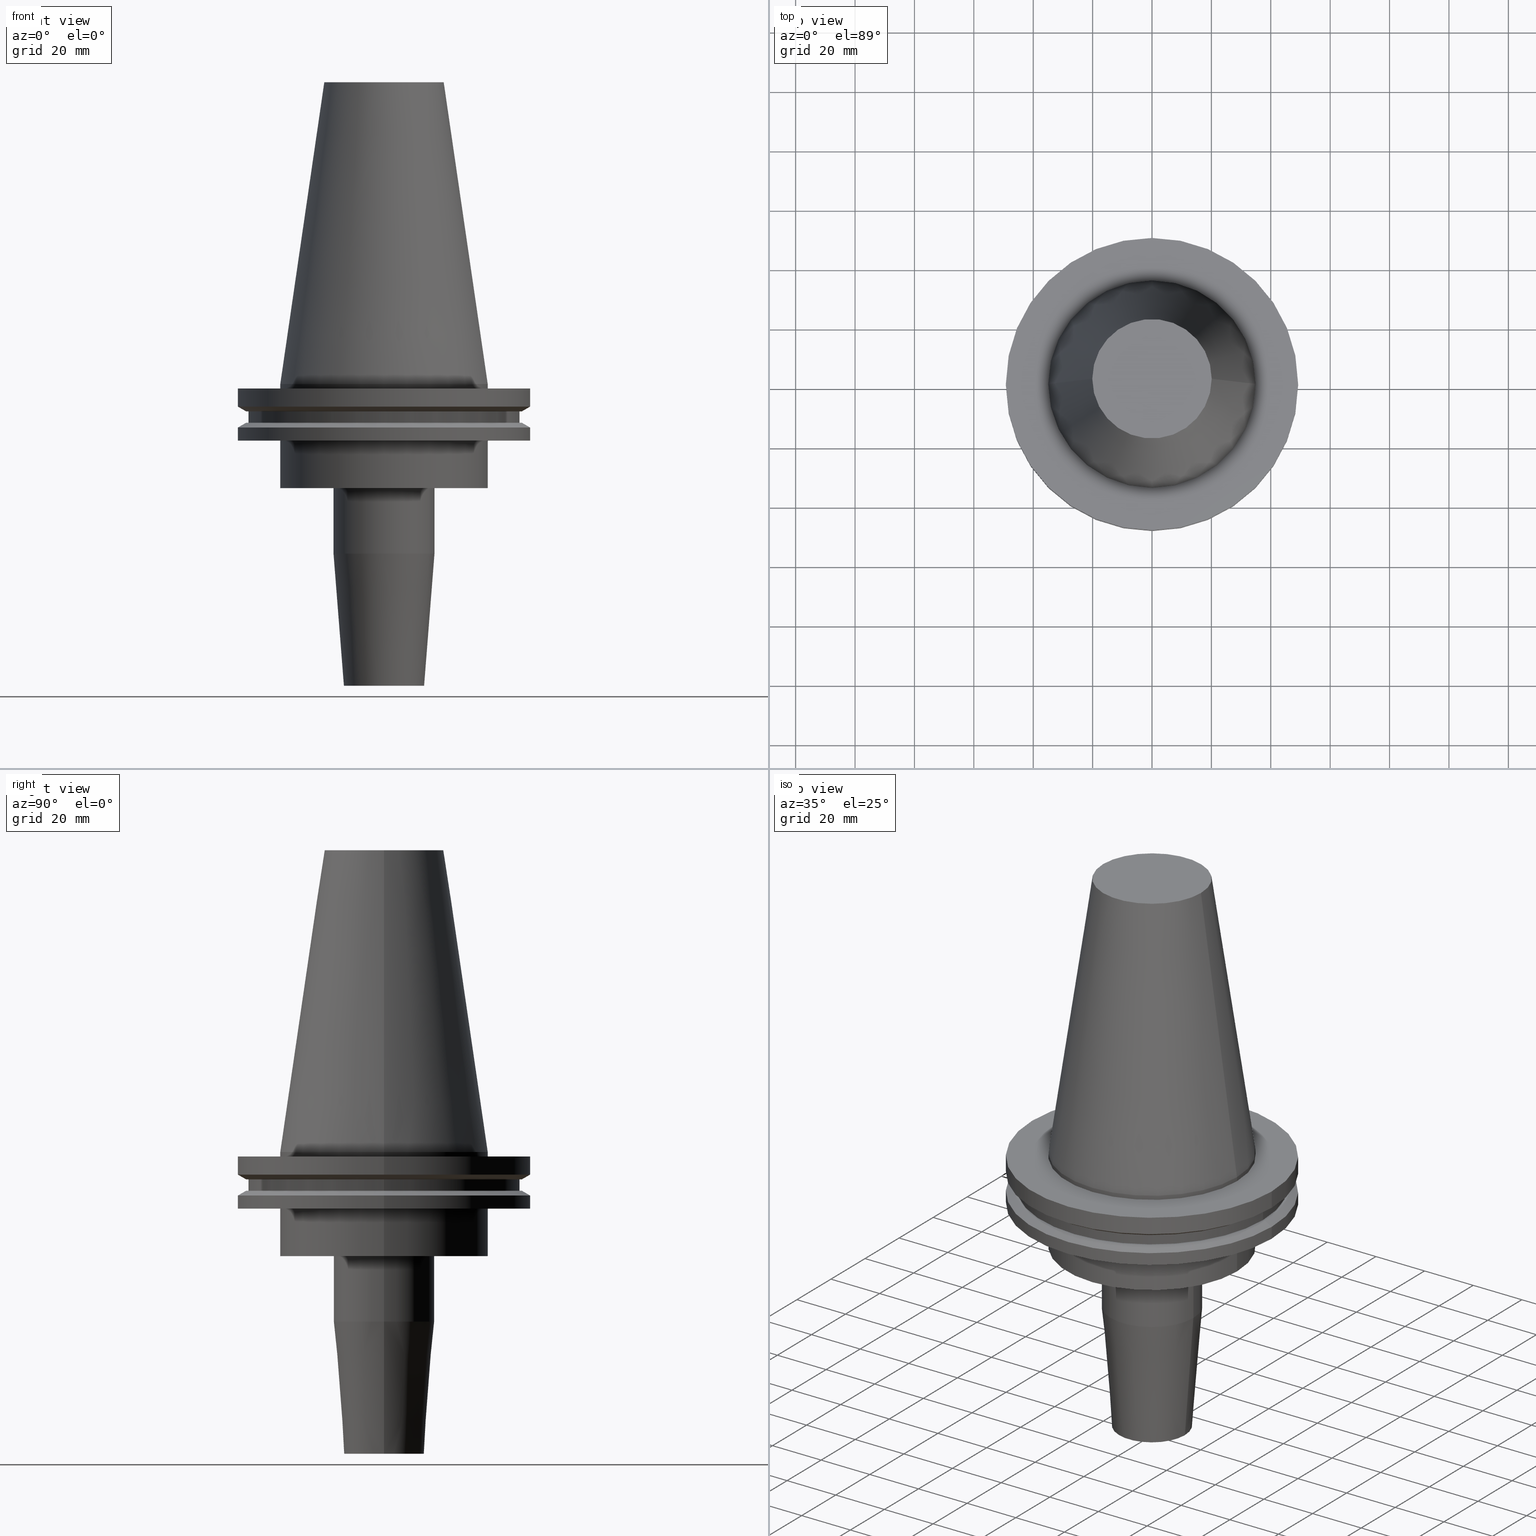
[diagram: canonical four-view strip — front | top / right | iso, engineering-drawing reading convention]
A machine part, canonical four-view strip (front | top / right | iso — engineering-drawing reading convention). The complete STEP part file that produces these views, byte-faithful:
ISO-10303-21;
HEADER;
FILE_DESCRIPTION (( 'STEP AP203' ),
    '1' );
FILE_NAME ('BCV50-SF_625-4.stp',
    '2022-03-03T17:21:38',
    ( '' ),
    ( '' ),
    'SwSTEP 2.0',
    'SolidWorks 2021',
    '' );
FILE_SCHEMA (( 'CONFIG_CONTROL_DESIGN' ));
ENDSEC;

DATA;
#1 = CALENDAR_DATE ( 2022, 3, 3 ) ;
#2 = DIRECTION ( 'NONE',  ( 1.000000000000000000, 0.000000000000000000, 0.000000000000000000 ) ) ;
#3 = ORIENTED_EDGE ( 'NONE', *, *, #284, .T. ) ;
#4 = CC_DESIGN_APPROVAL ( #801, ( #241 ) ) ;
#5 = VERTEX_POINT ( 'NONE', #460 ) ;
#6 = CIRCLE ( 'NONE', #29, 7.937500000000000000 ) ;
#7 = ADVANCED_FACE ( 'NONE', ( #798 ), #177, .T. ) ;
#8 = DIRECTION ( 'NONE',  ( 0.000000000000000000, 0.000000000000000000, -1.000000000000000000 ) ) ;
#9 = LINE ( 'NONE', #273, #349 ) ;
#10 = CONICAL_SURFACE ( 'NONE', #440, 13.50000000000000000, 0.07853981633973740328 ) ;
#11 = CIRCLE ( 'NONE', #709, 45.64500000000000313 ) ;
#12 = FACE_OUTER_BOUND ( 'NONE', #736, .T. ) ;
#13 = EDGE_LOOP ( 'NONE', ( #86, #262 ) ) ;
#14 = PERSON_AND_ORGANIZATION ( #649, #758 ) ;
#15 = DIRECTION ( 'NONE',  ( 1.000000000000000000, 0.000000000000000000, 0.000000000000000000 ) ) ;
#16 = FACE_OUTER_BOUND ( 'NONE', #140, .T. ) ;
#17 = EDGE_LOOP ( 'NONE', ( #172, #3 ) ) ;
#18 = DIRECTION ( 'NONE',  ( -0.07845909572783753283, 9.608468044709199834E-18, 0.9969173337331286300 ) ) ;
#19 = CARTESIAN_POINT ( 'NONE',  ( 0.000000000000000000, 0.000000000000000000, -7.602389855251287187 ) ) ;
#20 = APPROVAL_DATE_TIME ( #677, #129 ) ;
#21 = CIRCLE ( 'NONE', #192, 17.00000000000000000 ) ;
#22 = DIRECTION ( 'NONE',  ( -0.000000000000000000, -0.000000000000000000, 1.000000000000000000 ) ) ;
#23 = DIRECTION ( 'NONE',  ( 1.000000000000000000, 0.000000000000000000, 0.000000000000000000 ) ) ;
#24 = EDGE_LOOP ( 'NONE', ( #681, #835, #631, #135 ) ) ;
#25 = ORIENTED_EDGE ( 'NONE', *, *, #629, .T. ) ;
#26 = LINE ( 'NONE', #613, #559 ) ;
#27 = DIRECTION ( 'NONE',  ( 1.000000000000000000, 0.000000000000000000, 0.000000000000000000 ) ) ;
#28 = EDGE_CURVE ( 'NONE', #498, #309, #577, .T. ) ;
#29 = AXIS2_PLACEMENT_3D ( 'NONE', #477, #735, #144 ) ;
#30 = CARTESIAN_POINT ( 'NONE',  ( -13.50000000000000000, 1.867586368699713770E-15, -101.5999999999999943 ) ) ;
#31 = CC_DESIGN_DATE_AND_TIME_ASSIGNMENT ( #271, #796, ( #557 ) ) ;
#32 = CARTESIAN_POINT ( 'NONE',  ( 0.000000000000000000, 0.000000000000000000, 101.5999999999999943 ) ) ;
#33 = ORIENTED_EDGE ( 'NONE', *, *, #663, .F. ) ;
#34 = DIRECTION ( 'NONE',  ( -0.000000000000000000, -0.000000000000000000, 1.000000000000000000 ) ) ;
#35 = CYLINDRICAL_SURFACE ( 'NONE', #499, 49.21499999999998920 ) ;
#36 = CIRCLE ( 'NONE', #708, 13.50000000000000000 ) ;
#37 = EDGE_LOOP ( 'NONE', ( #574, #344, #570, #33 ) ) ;
#38 = DIRECTION ( 'NONE',  ( 0.000000000000000000, -0.000000000000000000, 1.000000000000000000 ) ) ;
#39 = DIRECTION ( 'NONE',  ( -0.000000000000000000, -0.000000000000000000, 1.000000000000000000 ) ) ;
#40 = ADVANCED_FACE ( 'NONE', ( #413 ), #805, .F. ) ;
#41 = ORIENTED_EDGE ( 'NONE', *, *, #732, .F. ) ;
#42 = EDGE_LOOP ( 'NONE', ( #599, #317, #405, #251 ) ) ;
#43 = APPROVAL_PERSON_ORGANIZATION ( #14, #801, #664 ) ;
#44 = CARTESIAN_POINT ( 'NONE',  ( 49.21499999999999631, 0.000000000000000000, -1.499999999999987566 ) ) ;
#45 = VECTOR ( 'NONE', #315, 1000.000000000000000 ) ;
#46 = DIRECTION ( 'NONE',  ( 1.000000000000000000, 0.000000000000000000, 0.000000000000000000 ) ) ;
#47 = ORIENTED_EDGE ( 'NONE', *, *, #119, .T. ) ;
#48 = DIRECTION ( 'NONE',  ( 1.000000000000000000, 0.000000000000000000, 0.000000000000000000 ) ) ;
#49 = PRODUCT_DEFINITION_SHAPE ( 'NONE', 'NONE',  #557 ) ;
#50 = LINE ( 'NONE', #190, #536 ) ;
#51 = EDGE_LOOP ( 'NONE', ( #651, #274, #68, #265 ) ) ;
#52 = AXIS2_PLACEMENT_3D ( 'NONE', #249, #387, #765 ) ;
#53 = DIRECTION ( 'NONE',  ( -0.000000000000000000, -0.000000000000000000, 1.000000000000000000 ) ) ;
#54 = FACE_BOUND ( 'NONE', #304, .T. ) ;
#55 = VERTEX_POINT ( 'NONE', #266 ) ;
#56 = VERTEX_POINT ( 'NONE', #527 ) ;
#57 = EDGE_CURVE ( 'NONE', #699, #590, #137, .T. ) ;
#58 =( LENGTH_UNIT ( ) NAMED_UNIT ( * ) SI_UNIT ( .MILLI., .METRE. ) );
#59 = CC_DESIGN_APPROVAL ( #407, ( #557 ) ) ;
#60 = EDGE_CURVE ( 'NONE', #104, #239, #11, .T. ) ;
#61 = CARTESIAN_POINT ( 'NONE',  ( 0.000000000000000000, 0.000000000000000000, 0.000000000000000000 ) ) ;
#62 = CIRCLE ( 'NONE', #760, 13.50000000000000000 ) ;
#63 = AXIS2_PLACEMENT_3D ( 'NONE', #374, #632, #688 ) ;
#64 = ORIENTED_EDGE ( 'NONE', *, *, #414, .F. ) ;
#65 = DIRECTION ( 'NONE',  ( -1.000000000000000000, 0.000000000000000000, 0.000000000000000000 ) ) ;
#66 = DIRECTION ( 'NONE',  ( 0.8660254037844273833, 0.000000000000000000, 0.5000000000000195399 ) ) ;
#67 = EDGE_CURVE ( 'NONE', #322, #662, #769, .T. ) ;
#68 = ORIENTED_EDGE ( 'NONE', *, *, #485, .F. ) ;
#69 = CIRCLE ( 'NONE', #563, 34.92499999999999005 ) ;
#70 = PLANE ( 'NONE',  #791 ) ;
#71 = CARTESIAN_POINT ( 'NONE',  ( 0.000000000000000000, 0.000000000000000000, -35.04999999999999716 ) ) ;
#72 = ORIENTED_EDGE ( 'NONE', *, *, #552, .T. ) ;
#73 = EDGE_LOOP ( 'NONE', ( #593, #389 ) ) ;
#74 = ADVANCED_FACE ( 'NONE', ( #16 ), #402, .T. ) ;
#75 = CARTESIAN_POINT ( 'NONE',  ( 0.000000000000000000, 0.000000000000000000, -13.05499999999999794 ) ) ;
#76 = ORIENTED_EDGE ( 'NONE', *, *, #398, .F. ) ;
#77 = SECURITY_CLASSIFICATION ( '', '', #749 ) ;
#78 = ORIENTED_EDGE ( 'NONE', *, *, #60, .F. ) ;
#79 = DIRECTION ( 'NONE',  ( 0.000000000000000000, -0.000000000000000000, 1.000000000000000000 ) ) ;
#80 = DIRECTION ( 'NONE',  ( 1.000000000000000000, 0.000000000000000000, 0.000000000000000000 ) ) ;
#81 = ORIENTED_EDGE ( 'NONE', *, *, #223, .T. ) ;
#82 = ORIENTED_EDGE ( 'NONE', *, *, #657, .T. ) ;
#83 = VECTOR ( 'NONE', #133, 1000.000000000000000 ) ;
#84 = DIRECTION ( 'NONE',  ( 1.000000000000000000, 0.000000000000000000, 0.000000000000000000 ) ) ;
#85 = DIRECTION ( 'NONE',  ( -1.000000000000000000, 0.000000000000000000, 0.000000000000000000 ) ) ;
#86 = ORIENTED_EDGE ( 'NONE', *, *, #345, .F. ) ;
#87 = DATE_AND_TIME ( #216, #272 ) ;
#88 = ADVANCED_FACE ( 'NONE', ( #98 ), #204, .T. ) ;
#89 = DIRECTION ( 'NONE',  ( -0.000000000000000000, -0.000000000000000000, 1.000000000000000000 ) ) ;
#90 = FACE_OUTER_BOUND ( 'NONE', #852, .T. ) ;
#91 = CARTESIAN_POINT ( 'NONE',  ( 0.000000000000000000, 0.000000000000000000, 0.000000000000000000 ) ) ;
#92 = ADVANCED_BREP_SHAPE_REPRESENTATION ( 'BCV50-SF_625-4', ( #237, #184 ), #313 ) ;
#93 = CARTESIAN_POINT ( 'NONE',  ( 0.000000000000000000, 0.000000000000000000, -13.05499999999999794 ) ) ;
#94 = ADVANCED_FACE ( 'NONE', ( #623 ), #810, .T. ) ;
#95 = ORIENTED_EDGE ( 'NONE', *, *, #235, .T. ) ;
#96 = DIRECTION ( 'NONE',  ( -0.000000000000000000, -0.000000000000000000, 1.000000000000000000 ) ) ;
#97 = CLOSED_SHELL ( 'NONE', ( #763, #7, #546, #187, #168, #88, #123, #851, #94, #293, #363, #74, #108, #566, #575, #770, #240, #333, #276, #583, #430, #368, #756, #820, #636, #457, #370, #824, #757, #40 ) ) ;
#98 = FACE_OUTER_BOUND ( 'NONE', #730, .T. ) ;
#99 = EDGE_LOOP ( 'NONE', ( #112, #700, #811, #76 ) ) ;
#100 = CC_DESIGN_PERSON_AND_ORGANIZATION_ASSIGNMENT ( #458, #714, ( #557 ) ) ;
#101 = VERTEX_POINT ( 'NONE', #432 ) ;
#102 = CARTESIAN_POINT ( 'NONE',  ( -34.92499999999999005, 4.277078946022130098E-15, 101.5999999999999943 ) ) ;
#103 = CARTESIAN_POINT ( 'NONE',  ( 0.000000000000000000, 0.000000000000000000, -101.5999999999999943 ) ) ;
#104 = VERTEX_POINT ( 'NONE', #685 ) ;
#105 = CARTESIAN_POINT ( 'NONE',  ( 7.937500000000007105, 0.000000000000000000, -62.59999999999998721 ) ) ;
#106 = CARTESIAN_POINT ( 'NONE',  ( 0.000000000000000000, 0.000000000000000000, -14.65761014474876944 ) ) ;
#107 = ORIENTED_EDGE ( 'NONE', *, *, #340, .T. ) ;
#108 = ADVANCED_FACE ( 'NONE', ( #163 ), #151, .F. ) ;
#109 = LINE ( 'NONE', #431, #45 ) ;
#110 = DIRECTION ( 'NONE',  ( -0.000000000000000000, -0.000000000000000000, 1.000000000000000000 ) ) ;
#111 = VECTOR ( 'NONE', #584, 1000.000000000000000 ) ;
#112 = ORIENTED_EDGE ( 'NONE', *, *, #479, .F. ) ;
#113 = CARTESIAN_POINT ( 'NONE',  ( 0.000000000000000000, 0.000000000000000000, -19.04999999999999716 ) ) ;
#114 = CARTESIAN_POINT ( 'NONE',  ( 0.000000000000000000, 0.000000000000000000, -13.05499999999999794 ) ) ;
#115 = ORIENTED_EDGE ( 'NONE', *, *, #214, .F. ) ;
#116 = PLANE ( 'NONE',  #169 ) ;
#117 = DIRECTION ( 'NONE',  ( 1.000000000000000000, 0.000000000000000000, 0.000000000000000000 ) ) ;
#118 = ORIENTED_EDGE ( 'NONE', *, *, #57, .F. ) ;
#119 = EDGE_CURVE ( 'NONE', #794, #178, #617, .T. ) ;
#120 = CYLINDRICAL_SURFACE ( 'NONE', #544, 7.937500000000003553 ) ;
#121 = EDGE_LOOP ( 'NONE', ( #107, #366, #153, #438 ) ) ;
#122 = CIRCLE ( 'NONE', #603, 46.43919780457007818 ) ;
#123 = ADVANCED_FACE ( 'NONE', ( #554 ), #149, .T. ) ;
#124 = AXIS2_PLACEMENT_3D ( 'NONE', #365, #420, #287 ) ;
#125 = EDGE_CURVE ( 'NONE', #767, #55, #350, .T. ) ;
#126 = APPROVAL_DATE_TIME ( #452, #407 ) ;
#127 = CARTESIAN_POINT ( 'NONE',  ( 0.000000000000000000, 0.000000000000000000, -101.5999999999999943 ) ) ;
#128 = ORIENTED_EDGE ( 'NONE', *, *, #57, .T. ) ;
#129 = APPROVAL ( #359, 'UNSPECIFIED' ) ;
#130 = DIRECTION ( 'NONE',  ( -1.000000000000000000, 0.000000000000000000, 0.000000000000000000 ) ) ;
#131 = CIRCLE ( 'NONE', #242, 34.92499999999999005 ) ;
#132 = FACE_OUTER_BOUND ( 'NONE', #183, .T. ) ;
#133 = DIRECTION ( 'NONE',  ( -0.000000000000000000, -0.000000000000000000, 1.000000000000000000 ) ) ;
#134 = VERTEX_POINT ( 'NONE', #218 ) ;
#135 = ORIENTED_EDGE ( 'NONE', *, *, #235, .F. ) ;
#136 = AXIS2_PLACEMENT_3D ( 'NONE', #630, #311, #834 ) ;
#137 = CIRCLE ( 'NONE', #250, 49.21499999999999631 ) ;
#138 = CARTESIAN_POINT ( 'NONE',  ( 34.92499999999999716, 0.000000000000000000, -19.04999999999999716 ) ) ;
#139 = ORIENTED_EDGE ( 'NONE', *, *, #398, .T. ) ;
#140 = EDGE_LOOP ( 'NONE', ( #587, #847, #139, #263 ) ) ;
#141 = FACE_OUTER_BOUND ( 'NONE', #99, .T. ) ;
#142 = DIRECTION ( 'NONE',  ( 0.000000000000000000, -0.000000000000000000, 1.000000000000000000 ) ) ;
#143 = AXIS2_PLACEMENT_3D ( 'NONE', #764, #572, #444 ) ;
#144 = DIRECTION ( 'NONE',  ( 1.000000000000000000, 0.000000000000000000, 0.000000000000000000 ) ) ;
#145 = ORIENTED_EDGE ( 'NONE', *, *, #582, .T. ) ;
#146 = EDGE_CURVE ( 'NONE', #376, #326, #682, .T. ) ;
#147 = CIRCLE ( 'NONE', #294, 20.10819343178871321 ) ;
#148 = CARTESIAN_POINT ( 'NONE',  ( 0.000000000000000000, 0.000000000000000000, -101.5999999999999943 ) ) ;
#149 = CYLINDRICAL_SURFACE ( 'NONE', #753, 45.64500000000000313 ) ;
#150 = FACE_OUTER_BOUND ( 'NONE', #13, .T. ) ;
#151 = PLANE ( 'NONE',  #124 ) ;
#152 = LOCAL_TIME ( 11, 21, 38.00000000000000000, #155 ) ;
#153 = ORIENTED_EDGE ( 'NONE', *, *, #307, .F. ) ;
#154 = CIRCLE ( 'NONE', #672, 46.43919780457007818 ) ;
#155 = COORDINATED_UNIVERSAL_TIME_OFFSET ( 6, 0, .BEHIND. ) ;
#156 = DIRECTION ( 'NONE',  ( 1.000000000000000000, 0.000000000000000000, 0.000000000000000000 ) ) ;
#157 = EDGE_CURVE ( 'NONE', #5, #278, #426, .T. ) ;
#158 = DIRECTION ( 'NONE',  ( 1.000000000000000000, 0.000000000000000000, 0.000000000000000000 ) ) ;
#159 = PERSON_AND_ORGANIZATION_ROLE ( 'classification_officer' ) ;
#160 = CIRCLE ( 'NONE', #641, 34.92499999999999716 ) ;
#161 = CARTESIAN_POINT ( 'NONE',  ( 0.000000000000000000, 0.000000000000000000, -19.04999999999999716 ) ) ;
#162 = AXIS2_PLACEMENT_3D ( 'NONE', #291, #361, #751 ) ;
#163 = FACE_OUTER_BOUND ( 'NONE', #380, .T. ) ;
#164 = ORIENTED_EDGE ( 'NONE', *, *, #529, .F. ) ;
#165 = CYLINDRICAL_SURFACE ( 'NONE', #419, 34.92499999999999005 ) ;
#166 = CARTESIAN_POINT ( 'NONE',  ( 0.000000000000000000, 0.000000000000000000, -9.204999999999991189 ) ) ;
#167 = ORIENTED_EDGE ( 'NONE', *, *, #713, .F. ) ;
#168 = ADVANCED_FACE ( 'NONE', ( #90 ), #816, .T. ) ;
#169 = AXIS2_PLACEMENT_3D ( 'NONE', #628, #38, #771 ) ;
#170 = DIRECTION ( 'NONE',  ( -0.000000000000000000, -0.000000000000000000, 1.000000000000000000 ) ) ;
#171 = CARTESIAN_POINT ( 'NONE',  ( 0.000000000000000000, 0.000000000000000000, 101.5999999999999943 ) ) ;
#172 = ORIENTED_EDGE ( 'NONE', *, *, #146, .T. ) ;
#173 = CC_DESIGN_PERSON_AND_ORGANIZATION_ASSIGNMENT ( #462, #275, ( #723 ) ) ;
#174 = DIRECTION ( 'NONE',  ( 1.000000000000000000, 0.000000000000000000, 0.000000000000000000 ) ) ;
#175 = AXIS2_PLACEMENT_3D ( 'NONE', #646, #409, #711 ) ;
#176 = CARTESIAN_POINT ( 'NONE',  ( 49.21499999999998920, 0.000000000000000000, -19.04999999999999716 ) ) ;
#177 = CONICAL_SURFACE ( 'NONE', #388, 13.50000000000000000, 0.07853981633973740328 ) ;
#178 = VERTEX_POINT ( 'NONE', #354 ) ;
#179 = CARTESIAN_POINT ( 'NONE',  ( 0.000000000000000000, 0.000000000000000000, -7.602389855251287187 ) ) ;
#180 = APPLICATION_CONTEXT ( 'configuration controlled 3d designs of mechanical parts and assemblies' ) ;
#181 = CARTESIAN_POINT ( 'NONE',  ( 0.000000000000000000, 0.000000000000000000, -14.65761014474876944 ) ) ;
#182 = ORIENTED_EDGE ( 'NONE', *, *, #612, .F. ) ;
#183 = EDGE_LOOP ( 'NONE', ( #128, #357 ) ) ;
#184 = AXIS2_PLACEMENT_3D ( 'NONE', #194, #197, #724 ) ;
#185 = CARTESIAN_POINT ( 'NONE',  ( -46.43919780457007818, 5.857130358318727293E-15, -9.204999999999991189 ) ) ;
#186 = DIRECTION ( 'NONE',  ( -0.000000000000000000, -0.000000000000000000, 1.000000000000000000 ) ) ;
#187 = ADVANCED_FACE ( 'NONE', ( #562 ), #747, .T. ) ;
#188 = VERTEX_POINT ( 'NONE', #825 ) ;
#189 = CALENDAR_DATE ( 2022, 3, 3 ) ;
#190 = CARTESIAN_POINT ( 'NONE',  ( 34.92499999999999005, 4.277078946022130098E-15, 0.000000000000000000 ) ) ;
#191 = ORIENTED_EDGE ( 'NONE', *, *, #467, .F. ) ;
#192 = AXIS2_PLACEMENT_3D ( 'NONE', #71, #337, #525 ) ;
#193 = PRODUCT_RELATED_PRODUCT_CATEGORY ( 'detail', '', ( #723 ) ) ;
#194 = CARTESIAN_POINT ( 'NONE',  ( 0.000000000000000000, 0.000000000000000000, 0.000000000000000000 ) ) ;
#195 = CARTESIAN_POINT ( 'NONE',  ( 45.64500000000000313, 0.000000000000000000, -9.204999999999991189 ) ) ;
#196 = ORIENTED_EDGE ( 'NONE', *, *, #529, .T. ) ;
#197 = DIRECTION ( 'NONE',  ( 0.000000000000000000, 0.000000000000000000, 1.000000000000000000 ) ) ;
#198 = DIRECTION ( 'NONE',  ( -0.000000000000000000, -0.000000000000000000, 1.000000000000000000 ) ) ;
#199 = ORIENTED_EDGE ( 'NONE', *, *, #506, .F. ) ;
#200 = CARTESIAN_POINT ( 'NONE',  ( -34.92499999999999005, 0.000000000000000000, 0.000000000000000000 ) ) ;
#201 = CARTESIAN_POINT ( 'NONE',  ( 0.000000000000000000, 0.000000000000000000, -9.204999999999991189 ) ) ;
#202 = DIRECTION ( 'NONE',  ( -0.000000000000000000, -0.000000000000000000, 1.000000000000000000 ) ) ;
#203 = AXIS2_PLACEMENT_3D ( 'NONE', #106, #110, #375 ) ;
#204 = CONICAL_SURFACE ( 'NONE', #828, 46.43919780457007818, 1.047197551196575205 ) ;
#205 = CARTESIAN_POINT ( 'NONE',  ( 49.21499999999999631, 0.000000000000000000, 101.5999999999999943 ) ) ;
#206 = CARTESIAN_POINT ( 'NONE',  ( 0.000000000000000000, 0.000000000000000000, 101.5999999999999801 ) ) ;
#207 = ORIENTED_EDGE ( 'NONE', *, *, #479, .T. ) ;
#208 = PERSON_AND_ORGANIZATION_ROLE ( 'creator' ) ;
#209 = DIRECTION ( 'NONE',  ( 1.000000000000000000, 0.000000000000000000, 0.000000000000000000 ) ) ;
#210 = VECTOR ( 'NONE', #728, 1000.000000000000000 ) ;
#211 = AXIS2_PLACEMENT_3D ( 'NONE', #91, #553, #740 ) ;
#212 = VERTEX_POINT ( 'NONE', #502 ) ;
#213 = EDGE_CURVE ( 'NONE', #421, #188, #576, .T. ) ;
#214 = EDGE_CURVE ( 'NONE', #239, #376, #741, .T. ) ;
#215 = APPLICATION_CONTEXT ( 'configuration controlled 3d designs of mechanical parts and assemblies' ) ;
#216 = CALENDAR_DATE ( 2022, 3, 3 ) ;
#217 = CARTESIAN_POINT ( 'NONE',  ( -17.00000000000000000, 2.081899558550500280E-15, -57.12828342338427490 ) ) ;
#218 = CARTESIAN_POINT ( 'NONE',  ( 17.00000000000000000, 0.000000000000000000, -35.04999999999999716 ) ) ;
#219 = CC_DESIGN_DATE_AND_TIME_ASSIGNMENT ( #480, #556, ( #77 ) ) ;
#220 = AXIS2_PLACEMENT_3D ( 'NONE', #238, #846, #324 ) ;
#221 = LINE ( 'NONE', #684, #622 ) ;
#222 = DIRECTION ( 'NONE',  ( -0.000000000000000000, -0.000000000000000000, 1.000000000000000000 ) ) ;
#223 = EDGE_CURVE ( 'NONE', #101, #134, #305, .T. ) ;
#224 = FACE_BOUND ( 'NONE', #406, .T. ) ;
#225 = DIRECTION ( 'NONE',  ( -0.000000000000000000, -0.000000000000000000, 1.000000000000000000 ) ) ;
#226 = EDGE_LOOP ( 'NONE', ( #716, #338 ) ) ;
#227 = AXIS2_PLACEMENT_3D ( 'NONE', #495, #96, #360 ) ;
#228 = CARTESIAN_POINT ( 'NONE',  ( 0.000000000000000000, 0.000000000000000000, -13.05499999999999794 ) ) ;
#229 = DIRECTION ( 'NONE',  ( 0.000000000000000000, 0.000000000000000000, -1.000000000000000000 ) ) ;
#230 = EDGE_LOOP ( 'NONE', ( #464, #831, #853, #167 ) ) ;
#231 = CONICAL_SURFACE ( 'NONE', #752, 46.43919780457007818, 1.047197551196575205 ) ;
#232 = CARTESIAN_POINT ( 'NONE',  ( 0.000000000000000000, 0.000000000000000000, -62.59999999999998721 ) ) ;
#233 = AXIS2_PLACEMENT_3D ( 'NONE', #470, #279, #538 ) ;
#234 = DIRECTION ( 'NONE',  ( 1.000000000000000000, 0.000000000000000000, 0.000000000000000000 ) ) ;
#235 = EDGE_CURVE ( 'NONE', #56, #786, #520, .T. ) ;
#236 = DIRECTION ( 'NONE',  ( 1.000000000000000000, 0.000000000000000000, 0.000000000000000000 ) ) ;
#237 = MANIFOLD_SOLID_BREP ( 'BA', #97 ) ;
#238 = CARTESIAN_POINT ( 'NONE',  ( 0.000000000000000000, 0.000000000000000000, -35.04999999999999716 ) ) ;
#239 = VERTEX_POINT ( 'NONE', #504 ) ;
#240 = ADVANCED_FACE ( 'NONE', ( #378 ), #35, .T. ) ;
#241 = PRODUCT_DEFINITION_FORMATION_WITH_SPECIFIED_SOURCE ( 'ANY', '', #723, .NOT_KNOWN. ) ;
#242 = AXIS2_PLACEMENT_3D ( 'NONE', #243, #170, #174 ) ;
#243 = CARTESIAN_POINT ( 'NONE',  ( 0.000000000000000000, 0.000000000000000000, -1.499999999999987566 ) ) ;
#244 = CARTESIAN_POINT ( 'NONE',  ( 17.00000000000000000, 0.000000000000000000, 0.000000000000000000 ) ) ;
#245 = ORIENTED_EDGE ( 'NONE', *, *, #521, .T. ) ;
#246 = ORIENTED_EDGE ( 'NONE', *, *, #125, .F. ) ;
#247 = DIRECTION ( 'NONE',  ( 1.000000000000000000, 0.000000000000000000, 0.000000000000000000 ) ) ;
#248 = AXIS2_PLACEMENT_3D ( 'NONE', #19, #222, #488 ) ;
#249 = CARTESIAN_POINT ( 'NONE',  ( 0.000000000000000000, 0.000000000000000000, -14.65761014474876944 ) ) ;
#250 = AXIS2_PLACEMENT_3D ( 'NONE', #717, #356, #679 ) ;
#251 = ORIENTED_EDGE ( 'NONE', *, *, #629, .F. ) ;
#252 = EDGE_CURVE ( 'NONE', #455, #56, #469, .T. ) ;
#253 = DIRECTION ( 'NONE',  ( 1.000000000000000000, 0.000000000000000000, 0.000000000000000000 ) ) ;
#254 = CARTESIAN_POINT ( 'NONE',  ( -45.64500000000000313, 5.589900314708094957E-15, -9.204999999999991189 ) ) ;
#255 = DESIGN_CONTEXT ( 'detailed design', #215, 'design' ) ;
#256 = EDGE_LOOP ( 'NONE', ( #372, #782, #381, #766 ) ) ;
#257 = EDGE_LOOP ( 'NONE', ( #246, #41 ) ) ;
#258 = AXIS2_PLACEMENT_3D ( 'NONE', #648, #8, #65 ) ;
#259 = MECHANICAL_CONTEXT ( 'NONE', #180, 'mechanical' ) ;
#260 = AXIS2_PLACEMENT_3D ( 'NONE', #404, #597, #209 ) ;
#261 = DIRECTION ( 'NONE',  ( 0.1443082272672999988, 1.767266086135277066E-17, -0.9895327864921755756 ) ) ;
#262 = ORIENTED_EDGE ( 'NONE', *, *, #67, .F. ) ;
#263 = ORIENTED_EDGE ( 'NONE', *, *, #429, .T. ) ;
#264 = LINE ( 'NONE', #592, #83 ) ;
#265 = ORIENTED_EDGE ( 'NONE', *, *, #328, .F. ) ;
#266 = CARTESIAN_POINT ( 'NONE',  ( -7.937500000000007105, 9.720633968232124078E-16, -62.59999999999998721 ) ) ;
#267 = EDGE_CURVE ( 'NONE', #178, #212, #50, .T. ) ;
#268 = AXIS2_PLACEMENT_3D ( 'NONE', #442, #186, #772 ) ;
#269 = LINE ( 'NONE', #205, #210 ) ;
#270 = DIRECTION ( 'NONE',  ( -0.000000000000000000, -0.000000000000000000, 1.000000000000000000 ) ) ;
#271 = DATE_AND_TIME ( #1, #608 ) ;
#272 = LOCAL_TIME ( 11, 21, 38.00000000000000000, #808 ) ;
#273 = CARTESIAN_POINT ( 'NONE',  ( -34.92499999999999005, 0.000000000000000000, 0.000000000000000000 ) ) ;
#274 = ORIENTED_EDGE ( 'NONE', *, *, #425, .T. ) ;
#275 = PERSON_AND_ORGANIZATION_ROLE ( 'design_owner' ) ;
#276 = ADVANCED_FACE ( 'NONE', ( #54, #321 ), #706, .F. ) ;
#277 = DIRECTION ( 'NONE',  ( -0.000000000000000000, -0.000000000000000000, 1.000000000000000000 ) ) ;
#278 = VERTEX_POINT ( 'NONE', #694 ) ;
#279 = DIRECTION ( 'NONE',  ( -0.000000000000000000, -0.000000000000000000, 1.000000000000000000 ) ) ;
#280 = AXIS2_PLACEMENT_3D ( 'NONE', #474, #142, #411 ) ;
#281 = CALENDAR_DATE ( 2022, 3, 3 ) ;
#282 = EDGE_CURVE ( 'NONE', #786, #362, #783, .T. ) ;
#283 = CARTESIAN_POINT ( 'NONE',  ( 0.000000000000000000, 0.000000000000000000, -9.204999999999991189 ) ) ;
#284 = EDGE_CURVE ( 'NONE', #326, #376, #320, .T. ) ;
#285 = CARTESIAN_POINT ( 'NONE',  ( 0.000000000000000000, 34.92499999999999716, -35.04999999999999716 ) ) ;
#286 = VECTOR ( 'NONE', #34, 1000.000000000000000 ) ;
#287 = DIRECTION ( 'NONE',  ( -1.000000000000000000, 0.000000000000000000, -0.000000000000000000 ) ) ;
#288 = ORIENTED_EDGE ( 'NONE', *, *, #28, .T. ) ;
#289 = PERSON_AND_ORGANIZATION ( #649, #758 ) ;
#290 = CYLINDRICAL_SURFACE ( 'NONE', #433, 45.64500000000000313 ) ;
#291 = CARTESIAN_POINT ( 'NONE',  ( 0.000000000000000000, 0.000000000000000000, 101.5999999999999943 ) ) ;
#292 = EDGE_LOOP ( 'NONE', ( #668, #196, #839, #115 ) ) ;
#293 = ADVANCED_FACE ( 'NONE', ( #308 ), #638, .T. ) ;
#294 = AXIS2_PLACEMENT_3D ( 'NONE', #206, #850, #729 ) ;
#295 = AXIS2_PLACEMENT_3D ( 'NONE', #32, #822, #27 ) ;
#296 = CARTESIAN_POINT ( 'NONE',  ( -46.43919780457007818, 5.687161494633754392E-15, -9.204999999999991189 ) ) ;
#297 = CARTESIAN_POINT ( 'NONE',  ( 0.000000000000000000, 0.000000000000000000, 101.5999999999999801 ) ) ;
#298 = LINE ( 'NONE', #487, #410 ) ;
#299 = DIRECTION ( 'NONE',  ( 1.000000000000000000, 0.000000000000000000, 0.000000000000000000 ) ) ;
#300 = APPROVAL_PERSON_ORGANIZATION ( #422, #129, #609 ) ;
#301 = AXIS2_PLACEMENT_3D ( 'NONE', #113, #449, #236 ) ;
#302 = CARTESIAN_POINT ( 'NONE',  ( 0.000000000000000000, 0.000000000000000000, 101.5999999999999943 ) ) ;
#303 = DIRECTION ( 'NONE',  ( -0.000000000000000000, -0.000000000000000000, 1.000000000000000000 ) ) ;
#304 = EDGE_LOOP ( 'NONE', ( #64, #78 ) ) ;
#305 = CIRCLE ( 'NONE', #220, 17.00000000000000000 ) ;
#306 = CARTESIAN_POINT ( 'NONE',  ( 0.000000000000000000, 0.000000000000000000, 101.5999999999999943 ) ) ;
#307 = EDGE_CURVE ( 'NONE', #362, #786, #358, .T. ) ;
#308 = FACE_OUTER_BOUND ( 'NONE', #256, .T. ) ;
#309 = VERTEX_POINT ( 'NONE', #569 ) ;
#310 = CARTESIAN_POINT ( 'NONE',  ( -49.21499999999998920, 6.027099222003697037E-15, -14.65761014474876944 ) ) ;
#311 = DIRECTION ( 'NONE',  ( -0.000000000000000000, -0.000000000000000000, 1.000000000000000000 ) ) ;
#312 = ORIENTED_EDGE ( 'NONE', *, *, #515, .F. ) ;
#313 =( GEOMETRIC_REPRESENTATION_CONTEXT ( 3 ) GLOBAL_UNCERTAINTY_ASSIGNED_CONTEXT ( ( #580 ) ) GLOBAL_UNIT_ASSIGNED_CONTEXT ( ( #58, #530, #396 ) ) REPRESENTATION_CONTEXT ( 'NONE', 'WORKASPACE' ) );
#314 = VECTOR ( 'NONE', #412, 1000.000000000000000 ) ;
#315 = DIRECTION ( 'NONE',  ( -0.000000000000000000, -0.000000000000000000, 1.000000000000000000 ) ) ;
#316 = DIRECTION ( 'NONE',  ( 0.000000000000000000, 0.000000000000000000, -1.000000000000000000 ) ) ;
#317 = ORIENTED_EDGE ( 'NONE', *, *, #67, .T. ) ;
#318 = EDGE_CURVE ( 'NONE', #455, #362, #565, .T. ) ;
#319 = LINE ( 'NONE', #775, #286 ) ;
#320 = CIRCLE ( 'NONE', #136, 45.64500000000000313 ) ;
#321 = FACE_OUTER_BOUND ( 'NONE', #522, .T. ) ;
#322 = VERTEX_POINT ( 'NONE', #843 ) ;
#323 = CARTESIAN_POINT ( 'NONE',  ( 0.000000000000000000, 0.000000000000000000, 0.000000000000000000 ) ) ;
#324 = DIRECTION ( 'NONE',  ( 1.000000000000000000, 0.000000000000000000, 0.000000000000000000 ) ) ;
#325 = ORIENTED_EDGE ( 'NONE', *, *, #390, .T. ) ;
#326 = VERTEX_POINT ( 'NONE', #254 ) ;
#327 = VECTOR ( 'NONE', #812, 1000.000000000000000 ) ;
#328 = EDGE_CURVE ( 'NONE', #330, #134, #625, .T. ) ;
#329 = DIRECTION ( 'NONE',  ( -0.000000000000000000, -0.000000000000000000, 1.000000000000000000 ) ) ;
#330 = VERTEX_POINT ( 'NONE', #508 ) ;
#331 = FACE_BOUND ( 'NONE', #456, .T. ) ;
#332 = DIRECTION ( 'NONE',  ( 1.000000000000000000, 0.000000000000000000, 0.000000000000000000 ) ) ;
#333 = ADVANCED_FACE ( 'NONE', ( #838 ), #813, .T. ) ;
#334 = ORIENTED_EDGE ( 'NONE', *, *, #282, .T. ) ;
#335 = VECTOR ( 'NONE', #573, 1000.000000000000000 ) ;
#336 = APPROVAL_STATUS ( 'not_yet_approved' ) ;
#337 = DIRECTION ( 'NONE',  ( -0.000000000000000000, -0.000000000000000000, 1.000000000000000000 ) ) ;
#338 = ORIENTED_EDGE ( 'NONE', *, *, #489, .F. ) ;
#339 = VERTEX_POINT ( 'NONE', #176 ) ;
#340 = EDGE_CURVE ( 'NONE', #339, #585, #680, .T. ) ;
#341 = APPLICATION_PROTOCOL_DEFINITION ( 'international standard', 'config_control_design', 1994, #180 ) ;
#342 = CARTESIAN_POINT ( 'NONE',  ( 0.000000000000000000, 0.000000000000000000, -19.04999999999999716 ) ) ;
#343 = CIRCLE ( 'NONE', #819, 49.21499999999999631 ) ;
#344 = ORIENTED_EDGE ( 'NONE', *, *, #692, .T. ) ;
#345 = EDGE_CURVE ( 'NONE', #662, #322, #160, .T. ) ;
#346 = APPROVAL_DATE_TIME ( #87, #801 ) ;
#347 = DIRECTION ( 'NONE',  ( -0.000000000000000000, -0.000000000000000000, 1.000000000000000000 ) ) ;
#348 = CARTESIAN_POINT ( 'NONE',  ( 0.000000000000000000, 0.000000000000000000, -101.5999999999999943 ) ) ;
#349 = VECTOR ( 'NONE', #535, 999.9999999999998863 ) ;
#350 = CIRCLE ( 'NONE', #471, 7.937500000000007105 ) ;
#351 = CARTESIAN_POINT ( 'NONE',  ( 46.43919780457007818, 0.000000000000000000, -9.204999999999991189 ) ) ;
#352 = DIRECTION ( 'NONE',  ( -0.000000000000000000, -0.000000000000000000, 1.000000000000000000 ) ) ;
#353 = CYLINDRICAL_SURFACE ( 'NONE', #211, 17.00000000000000000 ) ;
#354 = CARTESIAN_POINT ( 'NONE',  ( 20.10819343178871321, 3.369811209154858606E-15, 101.5999999999999801 ) ) ;
#355 = CARTESIAN_POINT ( 'NONE',  ( -49.21499999999998920, 6.027099222003697037E-15, -19.04999999999999716 ) ) ;
#356 = DIRECTION ( 'NONE',  ( -0.000000000000000000, -0.000000000000000000, 1.000000000000000000 ) ) ;
#357 = ORIENTED_EDGE ( 'NONE', *, *, #713, .T. ) ;
#358 = CIRCLE ( 'NONE', #591, 49.21499999999998920 ) ;
#359 = APPROVAL_STATUS ( 'not_yet_approved' ) ;
#360 = DIRECTION ( 'NONE',  ( 1.000000000000000000, 0.000000000000000000, 0.000000000000000000 ) ) ;
#361 = DIRECTION ( 'NONE',  ( -0.000000000000000000, -0.000000000000000000, 1.000000000000000000 ) ) ;
#362 = VERTEX_POINT ( 'NONE', #450 ) ;
#363 = ADVANCED_FACE ( 'NONE', ( #141 ), #439, .T. ) ;
#364 = LINE ( 'NONE', #815, #718 ) ;
#365 = CARTESIAN_POINT ( 'NONE',  ( 0.000000000000000000, 20.10819343178871321, 101.5999999999999943 ) ) ;
#366 = ORIENTED_EDGE ( 'NONE', *, *, #674, .T. ) ;
#367 = AXIS2_PLACEMENT_3D ( 'NONE', #232, #642, #253 ) ;
#368 = ADVANCED_FACE ( 'NONE', ( #395 ), #231, .T. ) ;
#369 = DIRECTION ( 'NONE',  ( -0.000000000000000000, -0.000000000000000000, 1.000000000000000000 ) ) ;
#370 = ADVANCED_FACE ( 'NONE', ( #12 ), #10, .T. ) ;
#371 = DIRECTION ( 'NONE',  ( 1.000000000000000000, 0.000000000000000000, 0.000000000000000000 ) ) ;
#372 = ORIENTED_EDGE ( 'NONE', *, *, #345, .T. ) ;
#373 = AXIS2_PLACEMENT_3D ( 'NONE', #342, #277, #594 ) ;
#374 = CARTESIAN_POINT ( 'NONE',  ( 0.000000000000000000, 0.000000000000000000, 0.000000000000000000 ) ) ;
#375 = DIRECTION ( 'NONE',  ( 1.000000000000000000, 0.000000000000000000, 0.000000000000000000 ) ) ;
#376 = VERTEX_POINT ( 'NONE', #195 ) ;
#377 = CARTESIAN_POINT ( 'NONE',  ( 0.000000000000000000, 0.000000000000000000, 101.5999999999999943 ) ) ;
#378 = FACE_OUTER_BOUND ( 'NONE', #704, .T. ) ;
#379 = EDGE_CURVE ( 'NONE', #695, #634, #122, .T. ) ;
#380 = EDGE_LOOP ( 'NONE', ( #47, #207 ) ) ;
#381 = ORIENTED_EDGE ( 'NONE', *, *, #703, .F. ) ;
#382 = CIRCLE ( 'NONE', #743, 17.00000000000000000 ) ;
#383 = CARTESIAN_POINT ( 'NONE',  ( -49.21499999999998920, 6.027099222003697037E-15, 101.5999999999999943 ) ) ;
#384 = CARTESIAN_POINT ( 'NONE',  ( 45.64500000000000313, 0.000000000000000000, 101.5999999999999943 ) ) ;
#385 = ORIENTED_EDGE ( 'NONE', *, *, #425, .F. ) ;
#386 = DIRECTION ( 'NONE',  ( 1.000000000000000000, 0.000000000000000000, 0.000000000000000000 ) ) ;
#387 = DIRECTION ( 'NONE',  ( 0.000000000000000000, 0.000000000000000000, -1.000000000000000000 ) ) ;
#388 = AXIS2_PLACEMENT_3D ( 'NONE', #348, #202, #731 ) ;
#389 = ORIENTED_EDGE ( 'NONE', *, *, #657, .F. ) ;
#390 = EDGE_CURVE ( 'NONE', #448, #598, #36, .T. ) ;
#391 = DIRECTION ( 'NONE',  ( 1.000000000000000000, 0.000000000000000000, 0.000000000000000000 ) ) ;
#392 = CARTESIAN_POINT ( 'NONE',  ( 46.43919780457007818, 0.000000000000000000, -9.204999999999991189 ) ) ;
#393 = AXIS2_PLACEMENT_3D ( 'NONE', #161, #666, #84 ) ;
#394 = EDGE_CURVE ( 'NONE', #634, #188, #654, .T. ) ;
#395 = FACE_OUTER_BOUND ( 'NONE', #647, .T. ) ;
#396 =( NAMED_UNIT ( * ) SI_UNIT ( $, .STERADIAN. ) SOLID_ANGLE_UNIT ( ) );
#397 = LINE ( 'NONE', #653, #399 ) ;
#398 = EDGE_CURVE ( 'NONE', #794, #848, #9, .T. ) ;
#399 = VECTOR ( 'NONE', #785, 999.9999999999998863 ) ;
#400 = ORIENTED_EDGE ( 'NONE', *, *, #612, .T. ) ;
#401 = ORIENTED_EDGE ( 'NONE', *, *, #467, .T. ) ;
#402 = CONICAL_SURFACE ( 'NONE', #841, 34.92499999999999005, 0.1448138465474119452 ) ;
#403 = DIRECTION ( 'NONE',  ( -0.000000000000000000, -0.000000000000000000, 1.000000000000000000 ) ) ;
#404 = CARTESIAN_POINT ( 'NONE',  ( 0.000000000000000000, 0.000000000000000000, -57.12828342338427490 ) ) ;
#405 = ORIENTED_EDGE ( 'NONE', *, *, #601, .T. ) ;
#406 = EDGE_LOOP ( 'NONE', ( #509, #81 ) ) ;
#407 = APPROVAL ( #336, 'UNSPECIFIED' ) ;
#408 = FACE_BOUND ( 'NONE', #73, .T. ) ;
#409 = DIRECTION ( 'NONE',  ( 0.000000000000000000, -0.000000000000000000, 1.000000000000000000 ) ) ;
#410 = VECTOR ( 'NONE', #746, 1000.000000000000000 ) ;
#411 = DIRECTION ( 'NONE',  ( 1.000000000000000000, 0.000000000000000000, 0.000000000000000000 ) ) ;
#412 = DIRECTION ( 'NONE',  ( -0.000000000000000000, -0.000000000000000000, 1.000000000000000000 ) ) ;
#413 = FACE_OUTER_BOUND ( 'NONE', #257, .T. ) ;
#414 = EDGE_CURVE ( 'NONE', #239, #104, #826, .T. ) ;
#415 = DIRECTION ( 'NONE',  ( 1.000000000000000000, 0.000000000000000000, 0.000000000000000000 ) ) ;
#416 = EDGE_LOOP ( 'NONE', ( #721, #25 ) ) ;
#417 = DIRECTION ( 'NONE',  ( -0.000000000000000000, -0.000000000000000000, 1.000000000000000000 ) ) ;
#418 = LOCAL_TIME ( 11, 21, 38.00000000000000000, #780 ) ;
#419 = AXIS2_PLACEMENT_3D ( 'NONE', #306, #53, #48 ) ;
#420 = DIRECTION ( 'NONE',  ( 0.000000000000000000, 0.000000000000000000, -1.000000000000000000 ) ) ;
#421 = VERTEX_POINT ( 'NONE', #473 ) ;
#422 = PERSON_AND_ORGANIZATION ( #649, #758 ) ;
#423 = DIRECTION ( 'NONE',  ( -0.000000000000000000, -0.000000000000000000, 1.000000000000000000 ) ) ;
#424 = CARTESIAN_POINT ( 'NONE',  ( 0.000000000000000000, 0.000000000000000000, 0.000000000000000000 ) ) ;
#425 = EDGE_CURVE ( 'NONE', #555, #101, #264, .T. ) ;
#426 = CIRCLE ( 'NONE', #551, 7.937500000000000000 ) ;
#427 = LINE ( 'NONE', #296, #327 ) ;
#428 = DIRECTION ( 'NONE',  ( -0.000000000000000000, -0.000000000000000000, 1.000000000000000000 ) ) ;
#429 = EDGE_CURVE ( 'NONE', #848, #212, #69, .T. ) ;
#430 = ADVANCED_FACE ( 'NONE', ( #720, #459 ), #454, .F. ) ;
#431 = CARTESIAN_POINT ( 'NONE',  ( -7.937500000000003553, 9.720633968232120134E-16, 0.000000000000000000 ) ) ;
#432 = CARTESIAN_POINT ( 'NONE',  ( -17.00000000000000000, 2.081899558550500280E-15, -35.04999999999999716 ) ) ;
#433 = AXIS2_PLACEMENT_3D ( 'NONE', #548, #89, #481 ) ;
#434 = ORIENTED_EDGE ( 'NONE', *, *, #252, .T. ) ;
#435 = AXIS2_PLACEMENT_3D ( 'NONE', #377, #436, #247 ) ;
#436 = DIRECTION ( 'NONE',  ( -0.000000000000000000, -0.000000000000000000, 1.000000000000000000 ) ) ;
#437 = DIRECTION ( 'NONE',  ( -0.8660254037844169472, 0.000000000000000000, -0.5000000000000375255 ) ) ;
#438 = ORIENTED_EDGE ( 'NONE', *, *, #739, .F. ) ;
#439 = CONICAL_SURFACE ( 'NONE', #453, 34.92499999999999005, 0.1448138465474119452 ) ;
#440 = AXIS2_PLACEMENT_3D ( 'NONE', #531, #589, #80 ) ;
#441 = DIRECTION ( 'NONE',  ( -0.000000000000000000, -0.000000000000000000, 1.000000000000000000 ) ) ;
#442 = CARTESIAN_POINT ( 'NONE',  ( 0.000000000000000000, 0.000000000000000000, 101.5999999999999943 ) ) ;
#443 = ORIENTED_EDGE ( 'NONE', *, *, #665, .T. ) ;
#444 = DIRECTION ( 'NONE',  ( 1.000000000000000000, 0.000000000000000000, 0.000000000000000000 ) ) ;
#445 = DIRECTION ( 'NONE',  ( 0.8660254037844169472, 1.060575238724880168E-16, -0.5000000000000375255 ) ) ;
#446 = EDGE_LOOP ( 'NONE', ( #325, #72, #199, #191 ) ) ;
#447 = AXIS2_PLACEMENT_3D ( 'NONE', #784, #789, #466 ) ;
#448 = VERTEX_POINT ( 'NONE', #790 ) ;
#449 = DIRECTION ( 'NONE',  ( -0.000000000000000000, -0.000000000000000000, 1.000000000000000000 ) ) ;
#450 = CARTESIAN_POINT ( 'NONE',  ( 49.21499999999998920, 0.000000000000000000, -14.65761014474876944 ) ) ;
#451 = EDGE_LOOP ( 'NONE', ( #288, #245, #513, #748 ) ) ;
#452 = DATE_AND_TIME ( #189, #418 ) ;
#453 = AXIS2_PLACEMENT_3D ( 'NONE', #855, #715, #130 ) ;
#454 = PLANE ( 'NONE',  #175 ) ;
#455 = VERTEX_POINT ( 'NONE', #726 ) ;
#456 = EDGE_LOOP ( 'NONE', ( #400, #571 ) ) ;
#457 = ADVANCED_FACE ( 'NONE', ( #463 ), #803, .T. ) ;
#458 = PERSON_AND_ORGANIZATION ( #649, #758 ) ;
#459 = FACE_BOUND ( 'NONE', #17, .T. ) ;
#460 = CARTESIAN_POINT ( 'NONE',  ( -7.937500000000000000, 9.720633968232118162E-16, -101.5999999999999943 ) ) ;
#461 = CIRCLE ( 'NONE', #671, 49.21500000000000341 ) ;
#462 = PERSON_AND_ORGANIZATION ( #649, #758 ) ;
#463 = FACE_OUTER_BOUND ( 'NONE', #667, .T. ) ;
#464 = ORIENTED_EDGE ( 'NONE', *, *, #665, .F. ) ;
#465 = ORIENTED_EDGE ( 'NONE', *, *, #379, .T. ) ;
#466 = DIRECTION ( 'NONE',  ( -1.000000000000000000, 0.000000000000000000, -0.000000000000000000 ) ) ;
#467 = EDGE_CURVE ( 'NONE', #448, #330, #397, .T. ) ;
#468 = DIRECTION ( 'NONE',  ( 1.000000000000000000, 0.000000000000000000, 0.000000000000000000 ) ) ;
#469 = CIRCLE ( 'NONE', #840, 46.43919780457007818 ) ;
#470 = CARTESIAN_POINT ( 'NONE',  ( 0.000000000000000000, 0.000000000000000000, -1.499999999999987566 ) ) ;
#471 = AXIS2_PLACEMENT_3D ( 'NONE', #619, #303, #234 ) ;
#472 = DIRECTION ( 'NONE',  ( 1.000000000000000000, 0.000000000000000000, 0.000000000000000000 ) ) ;
#473 = CARTESIAN_POINT ( 'NONE',  ( -49.21500000000000341, 6.027099222003699404E-15, -7.602389855251287187 ) ) ;
#474 = CARTESIAN_POINT ( 'NONE',  ( 0.000000000000000000, 7.937500000000007105, -62.59999999999998721 ) ) ;
#475 = SHAPE_DEFINITION_REPRESENTATION ( #49, #92 ) ;
#476 = CIRCLE ( 'NONE', #227, 34.92499999999999005 ) ;
#477 = CARTESIAN_POINT ( 'NONE',  ( 0.000000000000000000, 0.000000000000000000, -101.5999999999999943 ) ) ;
#478 = ORIENTED_EDGE ( 'NONE', *, *, #788, .T. ) ;
#479 = EDGE_CURVE ( 'NONE', #178, #794, #147, .T. ) ;
#480 = DATE_AND_TIME ( #600, #658 ) ;
#481 = DIRECTION ( 'NONE',  ( 1.000000000000000000, 0.000000000000000000, 0.000000000000000000 ) ) ;
#482 = DIRECTION ( 'NONE',  ( -0.000000000000000000, -0.000000000000000000, 1.000000000000000000 ) ) ;
#483 = ORIENTED_EDGE ( 'NONE', *, *, #318, .F. ) ;
#484 = CIRCLE ( 'NONE', #260, 17.00000000000000000 ) ;
#485 = EDGE_CURVE ( 'NONE', #134, #101, #21, .T. ) ;
#486 = PERSON_AND_ORGANIZATION ( #649, #758 ) ;
#487 = CARTESIAN_POINT ( 'NONE',  ( -45.64500000000000313, 5.589900314708094957E-15, 101.5999999999999943 ) ) ;
#488 = DIRECTION ( 'NONE',  ( 1.000000000000000000, 0.000000000000000000, 0.000000000000000000 ) ) ;
#489 = EDGE_CURVE ( 'NONE', #585, #339, #627, .T. ) ;
#490 = PLANE ( 'NONE',  #689 ) ;
#491 = CC_DESIGN_SECURITY_CLASSIFICATION ( #77, ( #241 ) ) ;
#492 = DIRECTION ( 'NONE',  ( -0.000000000000000000, -0.000000000000000000, 1.000000000000000000 ) ) ;
#493 = ORIENTED_EDGE ( 'NONE', *, *, #515, .T. ) ;
#494 = ORIENTED_EDGE ( 'NONE', *, *, #582, .F. ) ;
#495 = CARTESIAN_POINT ( 'NONE',  ( 0.000000000000000000, 0.000000000000000000, 0.000000000000000000 ) ) ;
#496 = CC_DESIGN_PERSON_AND_ORGANIZATION_ASSIGNMENT ( #818, #159, ( #77 ) ) ;
#497 = DIRECTION ( 'NONE',  ( -0.000000000000000000, -0.000000000000000000, 1.000000000000000000 ) ) ;
#498 = VERTEX_POINT ( 'NONE', #797 ) ;
#499 = AXIS2_PLACEMENT_3D ( 'NONE', #171, #781, #776 ) ;
#500 = AXIS2_PLACEMENT_3D ( 'NONE', #297, #428, #560 ) ;
#501 = FACE_OUTER_BOUND ( 'NONE', #807, .T. ) ;
#502 = CARTESIAN_POINT ( 'NONE',  ( 34.92499999999999005, 4.277078946022130098E-15, 0.000000000000000000 ) ) ;
#503 = FACE_OUTER_BOUND ( 'NONE', #230, .T. ) ;
#504 = CARTESIAN_POINT ( 'NONE',  ( 45.64500000000000313, 0.000000000000000000, -13.05499999999999794 ) ) ;
#505 = VERTEX_POINT ( 'NONE', #138 ) ;
#506 = EDGE_CURVE ( 'NONE', #330, #555, #484, .T. ) ;
#507 = FACE_OUTER_BOUND ( 'NONE', #691, .T. ) ;
#508 = CARTESIAN_POINT ( 'NONE',  ( 17.00000000000000000, 0.000000000000000000, -57.12828342338427490 ) ) ;
#509 = ORIENTED_EDGE ( 'NONE', *, *, #485, .T. ) ;
#510 = AXIS2_PLACEMENT_3D ( 'NONE', #611, #225, #158 ) ;
#511 = FACE_OUTER_BOUND ( 'NONE', #226, .T. ) ;
#512 = DIRECTION ( 'NONE',  ( -0.000000000000000000, -0.000000000000000000, 1.000000000000000000 ) ) ;
#513 = ORIENTED_EDGE ( 'NONE', *, *, #606, .F. ) ;
#514 = CARTESIAN_POINT ( 'NONE',  ( 34.92499999999999716, 0.000000000000000000, -35.04999999999999716 ) ) ;
#515 = EDGE_CURVE ( 'NONE', #695, #421, #427, .T. ) ;
#516 = DIRECTION ( 'NONE',  ( 1.000000000000000000, 0.000000000000000000, 0.000000000000000000 ) ) ;
#517 = ORIENTED_EDGE ( 'NONE', *, *, #663, .T. ) ;
#518 = ORIENTED_EDGE ( 'NONE', *, *, #836, .F. ) ;
#519 = PERSON_AND_ORGANIZATION ( #649, #758 ) ;
#520 = LINE ( 'NONE', #830, #725 ) ;
#521 = EDGE_CURVE ( 'NONE', #309, #848, #821, .T. ) ;
#522 = EDGE_LOOP ( 'NONE', ( #792, #434 ) ) ;
#523 = EDGE_CURVE ( 'NONE', #322, #533, #221, .T. ) ;
#524 = VECTOR ( 'NONE', #66, 1000.000000000000000 ) ;
#525 = DIRECTION ( 'NONE',  ( 1.000000000000000000, 0.000000000000000000, 0.000000000000000000 ) ) ;
#526 = EDGE_LOOP ( 'NONE', ( #773, #567 ) ) ;
#527 = CARTESIAN_POINT ( 'NONE',  ( -46.43919780457007818, 0.000000000000000000, -13.05499999999999794 ) ) ;
#528 = CARTESIAN_POINT ( 'NONE',  ( 0.000000000000000000, 0.000000000000000000, 0.000000000000000000 ) ) ;
#529 = EDGE_CURVE ( 'NONE', #104, #326, #298, .T. ) ;
#530 =( NAMED_UNIT ( * ) PLANE_ANGLE_UNIT ( ) SI_UNIT ( $, .RADIAN. ) );
#531 = CARTESIAN_POINT ( 'NONE',  ( 0.000000000000000000, 0.000000000000000000, -101.5999999999999943 ) ) ;
#532 = ORIENTED_EDGE ( 'NONE', *, *, #788, .F. ) ;
#533 = VERTEX_POINT ( 'NONE', #610 ) ;
#534 = APPLICATION_PROTOCOL_DEFINITION ( 'international standard', 'config_control_design', 1994, #215 ) ;
#535 = DIRECTION ( 'NONE',  ( -0.1443082272672999988, 0.000000000000000000, -0.9895327864921755756 ) ) ;
#536 = VECTOR ( 'NONE', #261, 999.9999999999998863 ) ;
#537 = ORIENTED_EDGE ( 'NONE', *, *, #223, .F. ) ;
#538 = DIRECTION ( 'NONE',  ( 1.000000000000000000, 0.000000000000000000, 0.000000000000000000 ) ) ;
#539 = AXIS2_PLACEMENT_3D ( 'NONE', #614, #352, #607 ) ;
#540 = DIRECTION ( 'NONE',  ( 1.000000000000000000, 0.000000000000000000, 0.000000000000000000 ) ) ;
#541 = APPROVAL_STATUS ( 'not_yet_approved' ) ;
#542 = CIRCLE ( 'NONE', #393, 34.92499999999999716 ) ;
#543 = FACE_OUTER_BOUND ( 'NONE', #42, .T. ) ;
#544 = AXIS2_PLACEMENT_3D ( 'NONE', #323, #441, #697 ) ;
#545 = DIRECTION ( 'NONE',  ( 1.000000000000000000, 0.000000000000000000, 0.000000000000000000 ) ) ;
#546 = ADVANCED_FACE ( 'NONE', ( #737 ), #353, .T. ) ;
#547 = ORIENTED_EDGE ( 'NONE', *, *, #394, .T. ) ;
#548 = CARTESIAN_POINT ( 'NONE',  ( 0.000000000000000000, 0.000000000000000000, 101.5999999999999943 ) ) ;
#549 = CARTESIAN_POINT ( 'NONE',  ( 0.000000000000000000, 0.000000000000000000, -9.204999999999991189 ) ) ;
#550 = AXIS2_PLACEMENT_3D ( 'NONE', #75, #270, #332 ) ;
#551 = AXIS2_PLACEMENT_3D ( 'NONE', #103, #670, #23 ) ;
#552 = EDGE_CURVE ( 'NONE', #598, #555, #364, .T. ) ;
#553 = DIRECTION ( 'NONE',  ( -0.000000000000000000, -0.000000000000000000, 1.000000000000000000 ) ) ;
#554 = FACE_OUTER_BOUND ( 'NONE', #292, .T. ) ;
#555 = VERTEX_POINT ( 'NONE', #217 ) ;
#556 = DATE_TIME_ROLE ( 'classification_date' ) ;
#557 = PRODUCT_DEFINITION ( 'UNKNOWN', '', #241, #255 ) ;
#558 = DIRECTION ( 'NONE',  ( -0.000000000000000000, -0.000000000000000000, 1.000000000000000000 ) ) ;
#559 = VECTOR ( 'NONE', #423, 1000.000000000000000 ) ;
#560 = DIRECTION ( 'NONE',  ( 1.000000000000000000, 0.000000000000000000, 0.000000000000000000 ) ) ;
#561 = DIRECTION ( 'NONE',  ( 0.000000000000000000, -0.000000000000000000, 1.000000000000000000 ) ) ;
#562 = FACE_OUTER_BOUND ( 'NONE', #451, .T. ) ;
#563 = AXIS2_PLACEMENT_3D ( 'NONE', #528, #806, #2 ) ;
#564 = DIRECTION ( 'NONE',  ( -0.000000000000000000, -0.000000000000000000, 1.000000000000000000 ) ) ;
#565 = LINE ( 'NONE', #579, #615 ) ;
#566 = ADVANCED_FACE ( 'NONE', ( #224, #150 ), #490, .F. ) ;
#567 = ORIENTED_EDGE ( 'NONE', *, *, #379, .F. ) ;
#568 = LINE ( 'NONE', #578, #833 ) ;
#569 = CARTESIAN_POINT ( 'NONE',  ( -34.92499999999999005, 4.277078946022130098E-15, -1.499999999999987566 ) ) ;
#570 = ORIENTED_EDGE ( 'NONE', *, *, #732, .T. ) ;
#571 = ORIENTED_EDGE ( 'NONE', *, *, #157, .T. ) ;
#572 = DIRECTION ( 'NONE',  ( -0.000000000000000000, -0.000000000000000000, 1.000000000000000000 ) ) ;
#573 = DIRECTION ( 'NONE',  ( -0.000000000000000000, -0.000000000000000000, 1.000000000000000000 ) ) ;
#574 = ORIENTED_EDGE ( 'NONE', *, *, #157, .F. ) ;
#575 = ADVANCED_FACE ( 'NONE', ( #543 ), #809, .T. ) ;
#576 = CIRCLE ( 'NONE', #248, 49.21500000000000341 ) ;
#577 = CIRCLE ( 'NONE', #233, 34.92499999999999005 ) ;
#578 = CARTESIAN_POINT ( 'NONE',  ( -49.21499999999999631, 6.027099222003697826E-15, 101.5999999999999943 ) ) ;
#579 = CARTESIAN_POINT ( 'NONE',  ( 49.21499999999998920, 6.027099222003697037E-15, -14.65761014474876944 ) ) ;
#580 = UNCERTAINTY_MEASURE_WITH_UNIT (LENGTH_MEASURE( 1.000000000000000082E-05 ), #58, 'distance_accuracy_value', 'NONE');
#581 = ORIENTED_EDGE ( 'NONE', *, *, #390, .F. ) ;
#582 = EDGE_CURVE ( 'NONE', #598, #448, #62, .T. ) ;
#583 = ADVANCED_FACE ( 'NONE', ( #673 ), #290, .T. ) ;
#584 = DIRECTION ( 'NONE',  ( -0.000000000000000000, -0.000000000000000000, 1.000000000000000000 ) ) ;
#585 = VERTEX_POINT ( 'NONE', #355 ) ;
#586 = CC_DESIGN_APPROVAL ( #129, ( #77 ) ) ;
#587 = ORIENTED_EDGE ( 'NONE', *, *, #267, .F. ) ;
#588 = VECTOR ( 'NONE', #832, 1000.000000000000000 ) ;
#589 = DIRECTION ( 'NONE',  ( -0.000000000000000000, -0.000000000000000000, 1.000000000000000000 ) ) ;
#590 = VERTEX_POINT ( 'NONE', #621 ) ;
#591 = AXIS2_PLACEMENT_3D ( 'NONE', #181, #761, #371 ) ;
#592 = CARTESIAN_POINT ( 'NONE',  ( -17.00000000000000000, 2.081899558550500280E-15, 0.000000000000000000 ) ) ;
#593 = ORIENTED_EDGE ( 'NONE', *, *, #28, .F. ) ;
#594 = DIRECTION ( 'NONE',  ( 1.000000000000000000, 0.000000000000000000, 0.000000000000000000 ) ) ;
#595 = ORIENTED_EDGE ( 'NONE', *, *, #214, .T. ) ;
#596 = CIRCLE ( 'NONE', #301, 34.92499999999999716 ) ;
#597 = DIRECTION ( 'NONE',  ( -0.000000000000000000, -0.000000000000000000, 1.000000000000000000 ) ) ;
#598 = VERTEX_POINT ( 'NONE', #30 ) ;
#599 = ORIENTED_EDGE ( 'NONE', *, *, #523, .F. ) ;
#600 = CALENDAR_DATE ( 2022, 3, 3 ) ;
#601 = EDGE_CURVE ( 'NONE', #662, #505, #26, .T. ) ;
#602 = DIRECTION ( 'NONE',  ( 1.000000000000000000, 0.000000000000000000, 0.000000000000000000 ) ) ;
#603 = AXIS2_PLACEMENT_3D ( 'NONE', #201, #198, #468 ) ;
#604 = EDGE_CURVE ( 'NONE', #56, #455, #154, .T. ) ;
#605 = LINE ( 'NONE', #750, #314 ) ;
#606 = EDGE_CURVE ( 'NONE', #212, #848, #476, .T. ) ;
#607 = DIRECTION ( 'NONE',  ( 1.000000000000000000, 0.000000000000000000, 0.000000000000000000 ) ) ;
#608 = LOCAL_TIME ( 11, 21, 38.00000000000000000, #719 ) ;
#609 = APPROVAL_ROLE ( '' ) ;
#610 = CARTESIAN_POINT ( 'NONE',  ( -34.92499999999999716, 4.277078946022130887E-15, -19.04999999999999716 ) ) ;
#611 = CARTESIAN_POINT ( 'NONE',  ( 0.000000000000000000, 0.000000000000000000, 101.5999999999999943 ) ) ;
#612 = EDGE_CURVE ( 'NONE', #278, #5, #6, .T. ) ;
#613 = CARTESIAN_POINT ( 'NONE',  ( 34.92499999999999716, 0.000000000000000000, 101.5999999999999943 ) ) ;
#614 = CARTESIAN_POINT ( 'NONE',  ( 0.000000000000000000, 0.000000000000000000, -35.04999999999999716 ) ) ;
#615 = VECTOR ( 'NONE', #445, 1000.000000000000114 ) ;
#616 = EDGE_CURVE ( 'NONE', #498, #212, #605, .T. ) ;
#617 = CIRCLE ( 'NONE', #500, 20.10819343178871321 ) ;
#618 = DIRECTION ( 'NONE',  ( -0.000000000000000000, -0.000000000000000000, 1.000000000000000000 ) ) ;
#619 = CARTESIAN_POINT ( 'NONE',  ( 0.000000000000000000, 0.000000000000000000, -62.59999999999998721 ) ) ;
#620 = ORIENTED_EDGE ( 'NONE', *, *, #394, .F. ) ;
#621 = CARTESIAN_POINT ( 'NONE',  ( -49.21499999999999631, 6.027099222003697826E-15, -1.499999999999987566 ) ) ;
#622 = VECTOR ( 'NONE', #669, 1000.000000000000000 ) ;
#623 = FACE_OUTER_BOUND ( 'NONE', #121, .T. ) ;
#624 = FACE_BOUND ( 'NONE', #416, .T. ) ;
#625 = LINE ( 'NONE', #244, #335 ) ;
#626 = ORIENTED_EDGE ( 'NONE', *, *, #692, .F. ) ;
#627 = CIRCLE ( 'NONE', #373, 49.21499999999998920 ) ;
#628 = CARTESIAN_POINT ( 'NONE',  ( 0.000000000000000000, 49.21499999999998920, -19.04999999999999716 ) ) ;
#629 = EDGE_CURVE ( 'NONE', #533, #505, #542, .T. ) ;
#630 = CARTESIAN_POINT ( 'NONE',  ( 0.000000000000000000, 0.000000000000000000, -9.204999999999991189 ) ) ;
#631 = ORIENTED_EDGE ( 'NONE', *, *, #307, .T. ) ;
#632 = DIRECTION ( 'NONE',  ( -0.000000000000000000, -0.000000000000000000, 1.000000000000000000 ) ) ;
#633 = CARTESIAN_POINT ( 'NONE',  ( 0.000000000000000000, 45.64500000000000313, -13.05499999999999794 ) ) ;
#634 = VERTEX_POINT ( 'NONE', #351 ) ;
#635 = EDGE_LOOP ( 'NONE', ( #164, #707, #595, #676 ) ) ;
#636 = ADVANCED_FACE ( 'NONE', ( #507 ), #165, .T. ) ;
#637 = DIRECTION ( 'NONE',  ( 1.000000000000000000, 0.000000000000000000, 0.000000000000000000 ) ) ;
#638 = CYLINDRICAL_SURFACE ( 'NONE', #268, 34.92499999999999716 ) ;
#639 = ORIENTED_EDGE ( 'NONE', *, *, #328, .T. ) ;
#640 = CC_DESIGN_PERSON_AND_ORGANIZATION_ASSIGNMENT ( #486, #744, ( #241 ) ) ;
#641 = AXIS2_PLACEMENT_3D ( 'NONE', #702, #643, #117 ) ;
#642 = DIRECTION ( 'NONE',  ( -0.000000000000000000, -0.000000000000000000, 1.000000000000000000 ) ) ;
#643 = DIRECTION ( 'NONE',  ( -0.000000000000000000, -0.000000000000000000, 1.000000000000000000 ) ) ;
#644 = EDGE_LOOP ( 'NONE', ( #581, #494 ) ) ;
#645 = CARTESIAN_POINT ( 'NONE',  ( 0.000000000000000000, 13.50000000000000000, -101.5999999999999943 ) ) ;
#646 = CARTESIAN_POINT ( 'NONE',  ( 0.000000000000000000, 46.43919780457007818, -9.204999999999998295 ) ) ;
#647 = EDGE_LOOP ( 'NONE', ( #312, #465, #547, #845 ) ) ;
#648 = CARTESIAN_POINT ( 'NONE',  ( 0.000000000000000000, 0.000000000000000000, -14.65761014474876944 ) ) ;
#649 = PERSON ( 'UNSPECIFIED', 'UNSPECIFIED', 'UNSPECIFIED', ('UNSPECIFIED'), ('UNSPECIFIED'), ('UNSPECIFIED') ) ;
#650 = DIRECTION ( 'NONE',  ( -0.000000000000000000, -0.000000000000000000, 1.000000000000000000 ) ) ;
#651 = ORIENTED_EDGE ( 'NONE', *, *, #506, .T. ) ;
#652 = FACE_OUTER_BOUND ( 'NONE', #644, .T. ) ;
#653 = CARTESIAN_POINT ( 'NONE',  ( 13.50000000000000000, 0.000000000000000000, -101.5999999999999943 ) ) ;
#654 = LINE ( 'NONE', #392, #524 ) ;
#655 = EDGE_LOOP ( 'NONE', ( #483, #778, #95, #334 ) ) ;
#656 = ORIENTED_EDGE ( 'NONE', *, *, #125, .T. ) ;
#657 = EDGE_CURVE ( 'NONE', #309, #498, #131, .T. ) ;
#658 = LOCAL_TIME ( 11, 21, 38.00000000000000000, #683 ) ;
#659 = VECTOR ( 'NONE', #618, 1000.000000000000000 ) ;
#660 = FACE_OUTER_BOUND ( 'NONE', #24, .T. ) ;
#661 = DIRECTION ( 'NONE',  ( 1.000000000000000000, 0.000000000000000000, 0.000000000000000000 ) ) ;
#662 = VERTEX_POINT ( 'NONE', #514 ) ;
#663 = EDGE_CURVE ( 'NONE', #278, #767, #319, .T. ) ;
#664 = APPROVAL_ROLE ( '' ) ;
#665 = EDGE_CURVE ( 'NONE', #421, #590, #568, .T. ) ;
#666 = DIRECTION ( 'NONE',  ( -0.000000000000000000, -0.000000000000000000, 1.000000000000000000 ) ) ;
#667 = EDGE_LOOP ( 'NONE', ( #385, #762, #639, #537 ) ) ;
#668 = ORIENTED_EDGE ( 'NONE', *, *, #414, .T. ) ;
#669 = DIRECTION ( 'NONE',  ( -0.000000000000000000, -0.000000000000000000, 1.000000000000000000 ) ) ;
#670 = DIRECTION ( 'NONE',  ( -0.000000000000000000, -0.000000000000000000, 1.000000000000000000 ) ) ;
#671 = AXIS2_PLACEMENT_3D ( 'NONE', #179, #701, #637 ) ;
#672 = AXIS2_PLACEMENT_3D ( 'NONE', #228, #22, #678 ) ;
#673 = FACE_OUTER_BOUND ( 'NONE', #635, .T. ) ;
#674 = EDGE_CURVE ( 'NONE', #585, #786, #842, .T. ) ;
#675 = CARTESIAN_POINT ( 'NONE',  ( 0.000000000000000000, 0.000000000000000000, 101.5999999999999943 ) ) ;
#676 = ORIENTED_EDGE ( 'NONE', *, *, #284, .F. ) ;
#677 = DATE_AND_TIME ( #281, #152 ) ;
#678 = DIRECTION ( 'NONE',  ( 1.000000000000000000, 0.000000000000000000, 0.000000000000000000 ) ) ;
#679 = DIRECTION ( 'NONE',  ( 1.000000000000000000, 0.000000000000000000, 0.000000000000000000 ) ) ;
#680 = CIRCLE ( 'NONE', #800, 49.21499999999998920 ) ;
#681 = ORIENTED_EDGE ( 'NONE', *, *, #252, .F. ) ;
#682 = CIRCLE ( 'NONE', #802, 45.64500000000000313 ) ;
#683 = COORDINATED_UNIVERSAL_TIME_OFFSET ( 6, 0, .BEHIND. ) ;
#684 = CARTESIAN_POINT ( 'NONE',  ( -34.92499999999999716, 4.277078946022130887E-15, 101.5999999999999943 ) ) ;
#685 = CARTESIAN_POINT ( 'NONE',  ( -45.64500000000000313, 5.589900314708094957E-15, -13.05499999999999794 ) ) ;
#686 = ORIENTED_EDGE ( 'NONE', *, *, #552, .F. ) ;
#687 = CONICAL_SURFACE ( 'NONE', #258, 49.21499999999998920, 1.047197551196554333 ) ;
#688 = DIRECTION ( 'NONE',  ( 1.000000000000000000, 0.000000000000000000, 0.000000000000000000 ) ) ;
#689 = AXIS2_PLACEMENT_3D ( 'NONE', #285, #561, #15 ) ;
#690 = DIRECTION ( 'NONE',  ( -1.000000000000000000, 0.000000000000000000, -0.000000000000000000 ) ) ;
#691 = EDGE_LOOP ( 'NONE', ( #787, #82, #774, #742 ) ) ;
#692 = EDGE_CURVE ( 'NONE', #5, #55, #109, .T. ) ;
#693 = CYLINDRICAL_SURFACE ( 'NONE', #63, 7.937500000000003553 ) ;
#694 = CARTESIAN_POINT ( 'NONE',  ( 7.937500000000000000, 0.000000000000000000, -101.5999999999999943 ) ) ;
#695 = VERTEX_POINT ( 'NONE', #185 ) ;
#696 = AXIS2_PLACEMENT_3D ( 'NONE', #633, #316, #690 ) ;
#697 = DIRECTION ( 'NONE',  ( 1.000000000000000000, 0.000000000000000000, 0.000000000000000000 ) ) ;
#698 = CARTESIAN_POINT ( 'NONE',  ( 0.000000000000000000, 0.000000000000000000, -19.04999999999999716 ) ) ;
#699 = VERTEX_POINT ( 'NONE', #44 ) ;
#700 = ORIENTED_EDGE ( 'NONE', *, *, #267, .T. ) ;
#701 = DIRECTION ( 'NONE',  ( -0.000000000000000000, -0.000000000000000000, 1.000000000000000000 ) ) ;
#702 = CARTESIAN_POINT ( 'NONE',  ( 0.000000000000000000, 0.000000000000000000, -35.04999999999999716 ) ) ;
#703 = EDGE_CURVE ( 'NONE', #505, #533, #596, .T. ) ;
#704 = EDGE_LOOP ( 'NONE', ( #712, #817, #722, #804 ) ) ;
#705 = LINE ( 'NONE', #837, #588 ) ;
#706 = PLANE ( 'NONE',  #696 ) ;
#707 = ORIENTED_EDGE ( 'NONE', *, *, #60, .T. ) ;
#708 = AXIS2_PLACEMENT_3D ( 'NONE', #127, #650, #540 ) ;
#709 = AXIS2_PLACEMENT_3D ( 'NONE', #93, #497, #755 ) ;
#710 = APPROVAL_ROLE ( '' ) ;
#711 = DIRECTION ( 'NONE',  ( 1.000000000000000000, 0.000000000000000000, 0.000000000000000000 ) ) ;
#712 = ORIENTED_EDGE ( 'NONE', *, *, #674, .F. ) ;
#713 = EDGE_CURVE ( 'NONE', #590, #699, #343, .T. ) ;
#714 = PERSON_AND_ORGANIZATION_ROLE ( 'creator' ) ;
#715 = DIRECTION ( 'NONE',  ( 0.000000000000000000, 0.000000000000000000, -1.000000000000000000 ) ) ;
#716 = ORIENTED_EDGE ( 'NONE', *, *, #340, .F. ) ;
#717 = CARTESIAN_POINT ( 'NONE',  ( 0.000000000000000000, 0.000000000000000000, -1.499999999999987566 ) ) ;
#718 = VECTOR ( 'NONE', #18, 999.9999999999998863 ) ;
#719 = COORDINATED_UNIVERSAL_TIME_OFFSET ( 6, 0, .BEHIND. ) ;
#720 = FACE_OUTER_BOUND ( 'NONE', #526, .T. ) ;
#721 = ORIENTED_EDGE ( 'NONE', *, *, #703, .T. ) ;
#722 = ORIENTED_EDGE ( 'NONE', *, *, #739, .T. ) ;
#723 = PRODUCT ( 'BCV50-SF_625-4', 'BCV50-SF_625-4', '', ( #259 ) ) ;
#724 = DIRECTION ( 'NONE',  ( 1.000000000000000000, 0.000000000000000000, 0.000000000000000000 ) ) ;
#725 = VECTOR ( 'NONE', #437, 1000.000000000000114 ) ;
#726 = CARTESIAN_POINT ( 'NONE',  ( 46.43919780457007818, 5.857130358318725715E-15, -13.05499999999999794 ) ) ;
#727 = EDGE_CURVE ( 'NONE', #634, #695, #777, .T. ) ;
#728 = DIRECTION ( 'NONE',  ( -0.000000000000000000, -0.000000000000000000, 1.000000000000000000 ) ) ;
#729 = DIRECTION ( 'NONE',  ( 1.000000000000000000, 0.000000000000000000, 0.000000000000000000 ) ) ;
#730 = EDGE_LOOP ( 'NONE', ( #779, #493, #532, #620 ) ) ;
#731 = DIRECTION ( 'NONE',  ( 1.000000000000000000, 0.000000000000000000, 0.000000000000000000 ) ) ;
#732 = EDGE_CURVE ( 'NONE', #55, #767, #734, .T. ) ;
#733 = CC_DESIGN_PERSON_AND_ORGANIZATION_ASSIGNMENT ( #289, #208, ( #241 ) ) ;
#734 = CIRCLE ( 'NONE', #367, 7.937500000000007105 ) ;
#735 = DIRECTION ( 'NONE',  ( -0.000000000000000000, -0.000000000000000000, 1.000000000000000000 ) ) ;
#736 = EDGE_LOOP ( 'NONE', ( #686, #145, #401, #844 ) ) ;
#737 = FACE_OUTER_BOUND ( 'NONE', #51, .T. ) ;
#738 = DIRECTION ( 'NONE',  ( 1.000000000000000000, 0.000000000000000000, 0.000000000000000000 ) ) ;
#739 = EDGE_CURVE ( 'NONE', #339, #362, #705, .T. ) ;
#740 = DIRECTION ( 'NONE',  ( 1.000000000000000000, 0.000000000000000000, 0.000000000000000000 ) ) ;
#741 = LINE ( 'NONE', #384, #111 ) ;
#742 = ORIENTED_EDGE ( 'NONE', *, *, #429, .F. ) ;
#743 = AXIS2_PLACEMENT_3D ( 'NONE', #799, #403, #472 ) ;
#744 = PERSON_AND_ORGANIZATION_ROLE ( 'design_supplier' ) ;
#745 = AXIS2_PLACEMENT_3D ( 'NONE', #302, #558, #156 ) ;
#746 = DIRECTION ( 'NONE',  ( -0.000000000000000000, -0.000000000000000000, 1.000000000000000000 ) ) ;
#747 = CYLINDRICAL_SURFACE ( 'NONE', #510, 34.92499999999999005 ) ;
#748 = ORIENTED_EDGE ( 'NONE', *, *, #616, .F. ) ;
#749 = SECURITY_CLASSIFICATION_LEVEL ( 'unclassified' ) ;
#750 = CARTESIAN_POINT ( 'NONE',  ( 34.92499999999999005, 0.000000000000000000, 101.5999999999999943 ) ) ;
#751 = DIRECTION ( 'NONE',  ( 1.000000000000000000, 0.000000000000000000, 0.000000000000000000 ) ) ;
#752 = AXIS2_PLACEMENT_3D ( 'NONE', #283, #347, #602 ) ;
#753 = AXIS2_PLACEMENT_3D ( 'NONE', #675, #492, #545 ) ;
#754 = FACE_OUTER_BOUND ( 'NONE', #37, .T. ) ;
#755 = DIRECTION ( 'NONE',  ( 1.000000000000000000, 0.000000000000000000, 0.000000000000000000 ) ) ;
#756 = ADVANCED_FACE ( 'NONE', ( #503 ), #759, .T. ) ;
#757 = ADVANCED_FACE ( 'NONE', ( #501 ), #120, .F. ) ;
#758 = ORGANIZATION ( 'UNSPECIFIED', 'UNSPECIFIED', '' ) ;
#759 = CYLINDRICAL_SURFACE ( 'NONE', #435, 49.21499999999999631 ) ;
#760 = AXIS2_PLACEMENT_3D ( 'NONE', #148, #417, #415 ) ;
#761 = DIRECTION ( 'NONE',  ( -0.000000000000000000, -0.000000000000000000, 1.000000000000000000 ) ) ;
#762 = ORIENTED_EDGE ( 'NONE', *, *, #827, .T. ) ;
#763 = ADVANCED_FACE ( 'NONE', ( #754 ), #693, .F. ) ;
#764 = CARTESIAN_POINT ( 'NONE',  ( 0.000000000000000000, 0.000000000000000000, -9.204999999999991189 ) ) ;
#765 = DIRECTION ( 'NONE',  ( -1.000000000000000000, 0.000000000000000000, 0.000000000000000000 ) ) ;
#766 = ORIENTED_EDGE ( 'NONE', *, *, #601, .F. ) ;
#767 = VERTEX_POINT ( 'NONE', #105 ) ;
#768 = AXIS2_PLACEMENT_3D ( 'NONE', #61, #329, #661 ) ;
#769 = CIRCLE ( 'NONE', #539, 34.92499999999999716 ) ;
#770 = ADVANCED_FACE ( 'NONE', ( #511, #624 ), #116, .F. ) ;
#771 = DIRECTION ( 'NONE',  ( 1.000000000000000000, 0.000000000000000000, 0.000000000000000000 ) ) ;
#772 = DIRECTION ( 'NONE',  ( 1.000000000000000000, 0.000000000000000000, 0.000000000000000000 ) ) ;
#773 = ORIENTED_EDGE ( 'NONE', *, *, #727, .F. ) ;
#774 = ORIENTED_EDGE ( 'NONE', *, *, #616, .T. ) ;
#775 = CARTESIAN_POINT ( 'NONE',  ( 7.937500000000003553, 0.000000000000000000, 0.000000000000000000 ) ) ;
#776 = DIRECTION ( 'NONE',  ( 1.000000000000000000, 0.000000000000000000, 0.000000000000000000 ) ) ;
#777 = CIRCLE ( 'NONE', #143, 46.43919780457007818 ) ;
#778 = ORIENTED_EDGE ( 'NONE', *, *, #604, .F. ) ;
#779 = ORIENTED_EDGE ( 'NONE', *, *, #727, .T. ) ;
#780 = COORDINATED_UNIVERSAL_TIME_OFFSET ( 6, 0, .BEHIND. ) ;
#781 = DIRECTION ( 'NONE',  ( -0.000000000000000000, -0.000000000000000000, 1.000000000000000000 ) ) ;
#782 = ORIENTED_EDGE ( 'NONE', *, *, #523, .T. ) ;
#783 = CIRCLE ( 'NONE', #203, 49.21499999999998920 ) ;
#784 = CARTESIAN_POINT ( 'NONE',  ( 0.000000000000000000, 49.21499999999999631, -1.499999999999992895 ) ) ;
#785 = DIRECTION ( 'NONE',  ( 0.07845909572783753283, 0.000000000000000000, 0.9969173337331286300 ) ) ;
#786 = VERTEX_POINT ( 'NONE', #310 ) ;
#787 = ORIENTED_EDGE ( 'NONE', *, *, #521, .F. ) ;
#788 = EDGE_CURVE ( 'NONE', #188, #421, #461, .T. ) ;
#789 = DIRECTION ( 'NONE',  ( 0.000000000000000000, 0.000000000000000000, -1.000000000000000000 ) ) ;
#790 = CARTESIAN_POINT ( 'NONE',  ( 13.50000000000000000, 0.000000000000000000, -101.5999999999999943 ) ) ;
#791 = AXIS2_PLACEMENT_3D ( 'NONE', #645, #79, #391 ) ;
#792 = ORIENTED_EDGE ( 'NONE', *, *, #604, .T. ) ;
#793 = APPROVAL_PERSON_ORGANIZATION ( #519, #407, #710 ) ;
#794 = VERTEX_POINT ( 'NONE', #849 ) ;
#795 = VECTOR ( 'NONE', #829, 1000.000000000000000 ) ;
#796 = DATE_TIME_ROLE ( 'creation_date' ) ;
#797 = CARTESIAN_POINT ( 'NONE',  ( 34.92499999999999005, 0.000000000000000000, -1.499999999999987566 ) ) ;
#798 = FACE_OUTER_BOUND ( 'NONE', #446, .T. ) ;
#799 = CARTESIAN_POINT ( 'NONE',  ( 0.000000000000000000, 0.000000000000000000, -57.12828342338427490 ) ) ;
#800 = AXIS2_PLACEMENT_3D ( 'NONE', #698, #512, #516 ) ;
#801 = APPROVAL ( #541, 'UNSPECIFIED' ) ;
#802 = AXIS2_PLACEMENT_3D ( 'NONE', #549, #814, #738 ) ;
#803 = CYLINDRICAL_SURFACE ( 'NONE', #768, 17.00000000000000000 ) ;
#804 = ORIENTED_EDGE ( 'NONE', *, *, #282, .F. ) ;
#805 = PLANE ( 'NONE',  #280 ) ;
#806 = DIRECTION ( 'NONE',  ( -0.000000000000000000, -0.000000000000000000, 1.000000000000000000 ) ) ;
#807 = EDGE_LOOP ( 'NONE', ( #626, #182, #517, #656 ) ) ;
#808 = COORDINATED_UNIVERSAL_TIME_OFFSET ( 6, 0, .BEHIND. ) ;
#809 = CYLINDRICAL_SURFACE ( 'NONE', #745, 34.92499999999999716 ) ;
#810 = CYLINDRICAL_SURFACE ( 'NONE', #162, 49.21499999999998920 ) ;
#811 = ORIENTED_EDGE ( 'NONE', *, *, #606, .T. ) ;
#812 = DIRECTION ( 'NONE',  ( -0.8660254037844273833, 1.060575238724893110E-16, 0.5000000000000195399 ) ) ;
#813 = CONICAL_SURFACE ( 'NONE', #52, 49.21499999999998920, 1.047197551196554333 ) ;
#814 = DIRECTION ( 'NONE',  ( -0.000000000000000000, -0.000000000000000000, 1.000000000000000000 ) ) ;
#815 = CARTESIAN_POINT ( 'NONE',  ( -13.50000000000000000, 1.653273178848926867E-15, -101.5999999999999943 ) ) ;
#816 = CYLINDRICAL_SURFACE ( 'NONE', #295, 49.21499999999999631 ) ;
#817 = ORIENTED_EDGE ( 'NONE', *, *, #489, .T. ) ;
#818 = PERSON_AND_ORGANIZATION ( #649, #758 ) ;
#819 = AXIS2_PLACEMENT_3D ( 'NONE', #823, #564, #386 ) ;
#820 = ADVANCED_FACE ( 'NONE', ( #408, #132 ), #854, .F. ) ;
#821 = LINE ( 'NONE', #102, #659 ) ;
#822 = DIRECTION ( 'NONE',  ( -0.000000000000000000, -0.000000000000000000, 1.000000000000000000 ) ) ;
#823 = CARTESIAN_POINT ( 'NONE',  ( 0.000000000000000000, 0.000000000000000000, -1.499999999999987566 ) ) ;
#824 = ADVANCED_FACE ( 'NONE', ( #652, #331 ), #70, .F. ) ;
#825 = CARTESIAN_POINT ( 'NONE',  ( 49.21500000000000341, 0.000000000000000000, -7.602389855251287187 ) ) ;
#826 = CIRCLE ( 'NONE', #550, 45.64500000000000313 ) ;
#827 = EDGE_CURVE ( 'NONE', #555, #330, #382, .T. ) ;
#828 = AXIS2_PLACEMENT_3D ( 'NONE', #166, #482, #299 ) ;
#829 = DIRECTION ( 'NONE',  ( -0.000000000000000000, -0.000000000000000000, 1.000000000000000000 ) ) ;
#830 = CARTESIAN_POINT ( 'NONE',  ( -49.21499999999998920, 0.000000000000000000, -14.65761014474876944 ) ) ;
#831 = ORIENTED_EDGE ( 'NONE', *, *, #213, .T. ) ;
#832 = DIRECTION ( 'NONE',  ( -0.000000000000000000, -0.000000000000000000, 1.000000000000000000 ) ) ;
#833 = VECTOR ( 'NONE', #369, 1000.000000000000000 ) ;
#834 = DIRECTION ( 'NONE',  ( 1.000000000000000000, 0.000000000000000000, 0.000000000000000000 ) ) ;
#835 = ORIENTED_EDGE ( 'NONE', *, *, #318, .T. ) ;
#836 = EDGE_CURVE ( 'NONE', #188, #699, #269, .T. ) ;
#837 = CARTESIAN_POINT ( 'NONE',  ( 49.21499999999998920, 0.000000000000000000, 101.5999999999999943 ) ) ;
#838 = FACE_OUTER_BOUND ( 'NONE', #655, .T. ) ;
#839 = ORIENTED_EDGE ( 'NONE', *, *, #146, .F. ) ;
#840 = AXIS2_PLACEMENT_3D ( 'NONE', #114, #39, #46 ) ;
#841 = AXIS2_PLACEMENT_3D ( 'NONE', #424, #229, #85 ) ;
#842 = LINE ( 'NONE', #383, #795 ) ;
#843 = CARTESIAN_POINT ( 'NONE',  ( -34.92499999999999716, 4.277078946022130887E-15, -35.04999999999999716 ) ) ;
#844 = ORIENTED_EDGE ( 'NONE', *, *, #827, .F. ) ;
#845 = ORIENTED_EDGE ( 'NONE', *, *, #213, .F. ) ;
#846 = DIRECTION ( 'NONE',  ( -0.000000000000000000, -0.000000000000000000, 1.000000000000000000 ) ) ;
#847 = ORIENTED_EDGE ( 'NONE', *, *, #119, .F. ) ;
#848 = VERTEX_POINT ( 'NONE', #200 ) ;
#849 = CARTESIAN_POINT ( 'NONE',  ( -20.10819343178871321, 0.000000000000000000, 101.5999999999999801 ) ) ;
#850 = DIRECTION ( 'NONE',  ( -0.000000000000000000, -0.000000000000000000, 1.000000000000000000 ) ) ;
#851 = ADVANCED_FACE ( 'NONE', ( #660 ), #687, .T. ) ;
#852 = EDGE_LOOP ( 'NONE', ( #478, #443, #118, #518 ) ) ;
#853 = ORIENTED_EDGE ( 'NONE', *, *, #836, .T. ) ;
#854 = PLANE ( 'NONE',  #447 ) ;
#855 = CARTESIAN_POINT ( 'NONE',  ( 0.000000000000000000, 0.000000000000000000, 0.000000000000000000 ) ) ;
ENDSEC;
END-ISO-10303-21;
